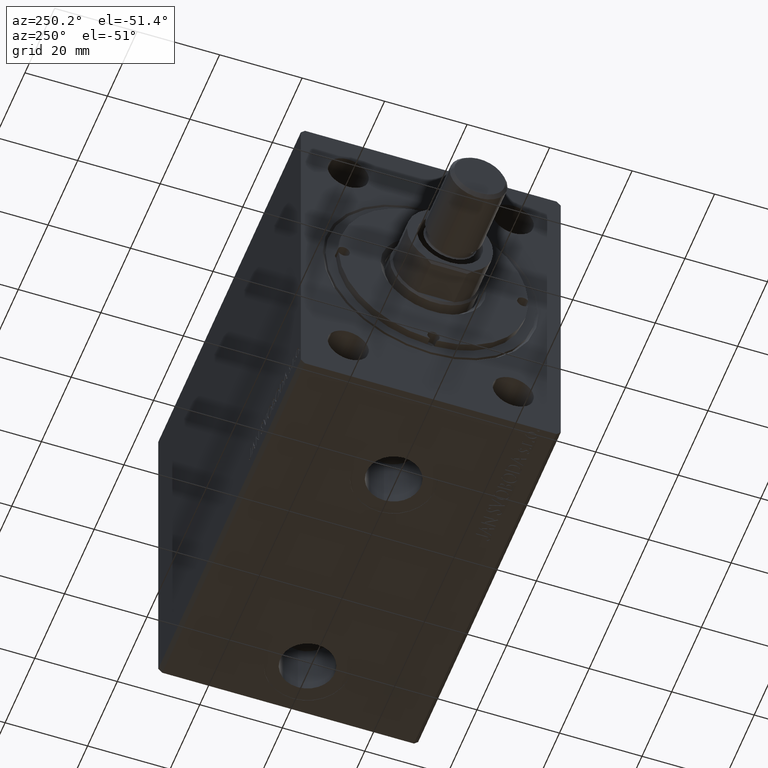
[diagram: clean part render]
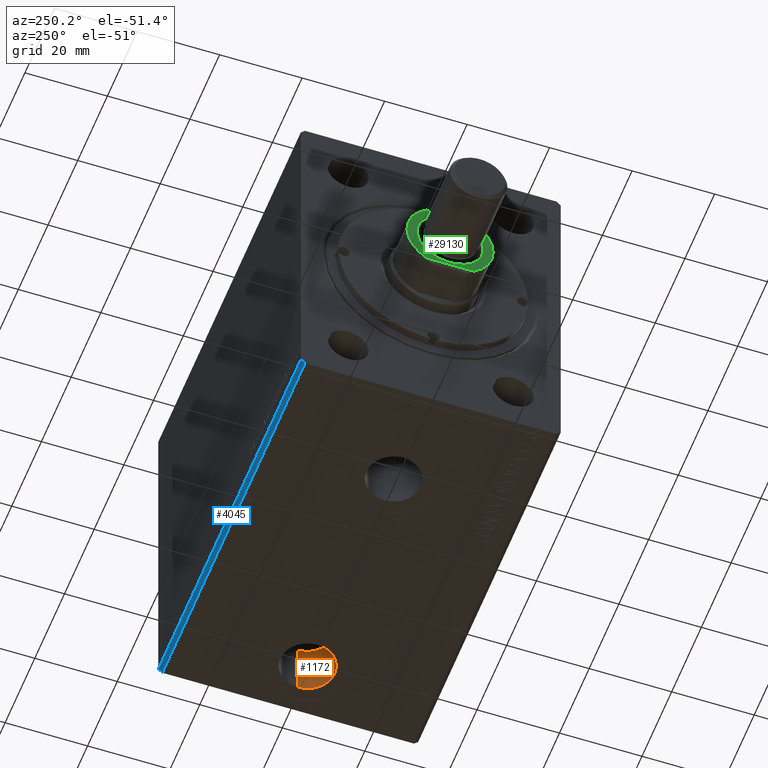
[diagram: same view with three faces highlighted in distinct colors, each labeled with its STEP entity id]
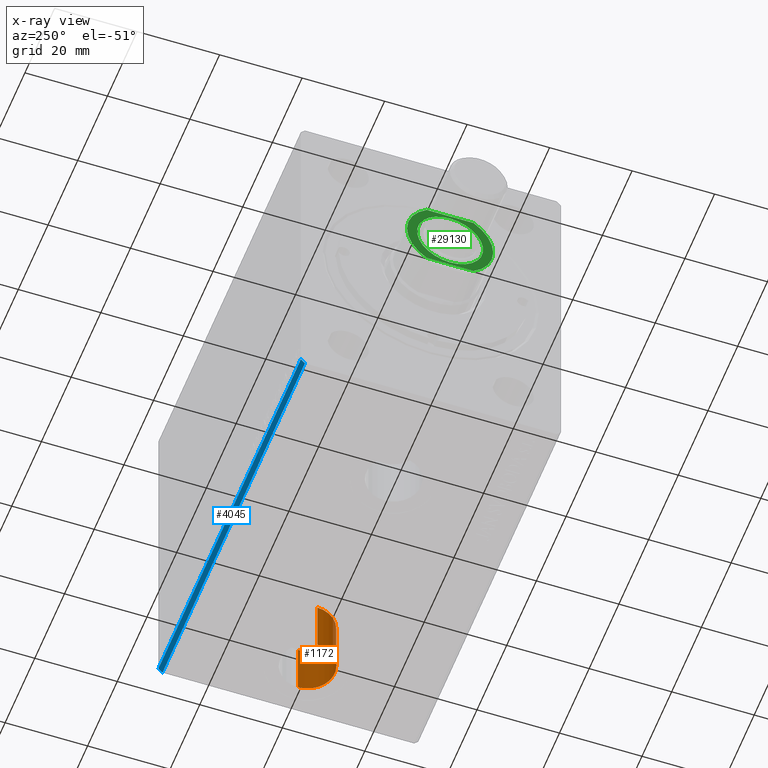
[diagram: x-ray of the same camera — body ghosted, the three highlighted faces saturated]
A machine part, auxiliary view with three faces highlighted in distinct colors.
The next image is the same camera in x-ray (body ghosted, the three faces saturated) — at least one of them is partly hidden behind the body in this view.
Their STEP definitions:

[orange] entity #1172 — the highlighted cylindrical surface (edge-blend (fillet) strip) has radius 6.58 mm, axis along (-0, -0, -1).
#374 = CARTESIAN_POINT ( 'NONE',  ( 89.58000000000001251, -9.105570349752486315E-15, -42.40000000000000568 ) ) ;
#1142 = DIRECTION ( 'NONE',  ( -1.000000000000000000, 0.000000000000000000, 0.000000000000000000 ) ) ;
#1172 = ADVANCED_FACE ( 'NONE', ( #44123 ), #27017, .F. ) ;
#1203 = EDGE_CURVE ( 'NONE', #4219, #4232, #20036, .T. ) ;
#1960 = VERTEX_POINT ( 'NONE', #20041 ) ;
#4219 = VERTEX_POINT ( 'NONE', #40259 ) ;
#4232 = VERTEX_POINT ( 'NONE', #17716 ) ;
#5132 = VERTEX_POINT ( 'NONE', #374 ) ;
#6795 = LINE ( 'NONE', #7014, #39703 ) ;
#7014 = CARTESIAN_POINT ( 'NONE',  ( 89.58000000000001251, -9.105570349752486315E-15, -28.80000000000000782 ) ) ;
#9520 = CIRCLE ( 'NONE', #34695, 6.580000000000002736 ) ;
#9839 = AXIS2_PLACEMENT_3D ( 'NONE', #28134, #41848, #38920 ) ;
#15676 = ORIENTED_EDGE ( 'NONE', *, *, #39952, .F. ) ;
#17716 = CARTESIAN_POINT ( 'NONE',  ( 76.42000000000000171, -9.911387943591445357E-15, -42.40000000000000568 ) ) ;
#17744 = CIRCLE ( 'NONE', #9839, 6.580000000000002736 ) ;
#18862 = AXIS2_PLACEMENT_3D ( 'NONE', #26136, #26801, #19141 ) ;
#19141 = DIRECTION ( 'NONE',  ( -1.000000000000000000, 0.000000000000000000, 0.000000000000000000 ) ) ;
#19711 = EDGE_LOOP ( 'NONE', ( #15676, #21535, #39571, #25025 ) ) ;
#20036 = LINE ( 'NONE', #23648, #20203 ) ;
#20041 = CARTESIAN_POINT ( 'NONE',  ( 89.58000000000001251, -9.105570349752486315E-15, -28.80000000000000782 ) ) ;
#20203 = VECTOR ( 'NONE', #29508, 1000.000000000000000 ) ;
#20535 = DIRECTION ( 'NONE',  ( -0.000000000000000000, -0.000000000000000000, -1.000000000000000000 ) ) ;
#21535 = ORIENTED_EDGE ( 'NONE', *, *, #23313, .T. ) ;
#23313 = EDGE_CURVE ( 'NONE', #1960, #5132, #6795, .T. ) ;
#23648 = CARTESIAN_POINT ( 'NONE',  ( 76.42000000000000171, -9.911387943591445357E-15, -28.80000000000000782 ) ) ;
#25025 = ORIENTED_EDGE ( 'NONE', *, *, #1203, .F. ) ;
#26136 = CARTESIAN_POINT ( 'NONE',  ( 83.00000000000000000, -9.911387943591445357E-15, -28.80000000000000782 ) ) ;
#26801 = DIRECTION ( 'NONE',  ( -0.000000000000000000, -0.000000000000000000, -1.000000000000000000 ) ) ;
#27017 = CYLINDRICAL_SURFACE ( 'NONE', #18862, 6.580000000000002736 ) ;
#27245 = EDGE_CURVE ( 'NONE', #5132, #4232, #9520, .T. ) ;
#28134 = CARTESIAN_POINT ( 'NONE',  ( 83.00000000000000000, -9.911387943591445357E-15, -28.80000000000000782 ) ) ;
#29508 = DIRECTION ( 'NONE',  ( -0.000000000000000000, -0.000000000000000000, -1.000000000000000000 ) ) ;
#34695 = AXIS2_PLACEMENT_3D ( 'NONE', #38757, #42127, #1142 ) ;
#38757 = CARTESIAN_POINT ( 'NONE',  ( 83.00000000000000000, -9.911387943591445357E-15, -42.40000000000000568 ) ) ;
#38920 = DIRECTION ( 'NONE',  ( -1.000000000000000000, 0.000000000000000000, 0.000000000000000000 ) ) ;
#39571 = ORIENTED_EDGE ( 'NONE', *, *, #27245, .T. ) ;
#39703 = VECTOR ( 'NONE', #20535, 1000.000000000000000 ) ;
#39952 = EDGE_CURVE ( 'NONE', #1960, #4219, #17744, .T. ) ;
#40259 = CARTESIAN_POINT ( 'NONE',  ( 76.42000000000000171, -9.911387943591445357E-15, -28.80000000000000782 ) ) ;
#41848 = DIRECTION ( 'NONE',  ( 0.000000000000000000, 0.000000000000000000, -1.000000000000000000 ) ) ;
#42127 = DIRECTION ( 'NONE',  ( 0.000000000000000000, 0.000000000000000000, -1.000000000000000000 ) ) ;
#44123 = FACE_OUTER_BOUND ( 'NONE', #19711, .T. ) ;

[blue] entity #4045 — the highlighted planar face has unit normal (0, -0.7071, 0.7071).
#1539 = CARTESIAN_POINT ( 'NONE',  ( 96.00000000000000000, 30.50000000000001776, -42.50000000000000711 ) ) ;
#4045 = ADVANCED_FACE ( 'NONE', ( #7855 ), #39591, .F. ) ;
#4284 = EDGE_CURVE ( 'NONE', #30232, #22589, #10514, .T. ) ;
#4873 = AXIS2_PLACEMENT_3D ( 'NONE', #1539, #35781, #4928 ) ;
#4928 = DIRECTION ( 'NONE',  ( 0.000000000000000000, -0.7071067811865462405, -0.7071067811865487940 ) ) ;
#5945 = CARTESIAN_POINT ( 'NONE',  ( 96.00000000000000000, 30.50000000000001776, -42.50000000000000711 ) ) ;
#7855 = FACE_OUTER_BOUND ( 'NONE', #25315, .T. ) ;
#8973 = LINE ( 'NONE', #36234, #21314 ) ;
#10358 = CARTESIAN_POINT ( 'NONE',  ( 0.000000000000000000, 31.50000000000001421, -41.50000000000000711 ) ) ;
#10514 = LINE ( 'NONE', #27202, #27898 ) ;
#12254 = ORIENTED_EDGE ( 'NONE', *, *, #4284, .F. ) ;
#14109 = DIRECTION ( 'NONE',  ( 0.000000000000000000, 0.7071067811865462405, 0.7071067811865489050 ) ) ;
#18892 = DIRECTION ( 'NONE',  ( -1.000000000000000000, -0.000000000000000000, -0.000000000000000000 ) ) ;
#19231 = DIRECTION ( 'NONE',  ( 0.000000000000000000, 0.7071067811865462405, 0.7071067811865489050 ) ) ;
#19707 = EDGE_CURVE ( 'NONE', #22589, #24724, #21069, .T. ) ;
#20403 = DIRECTION ( 'NONE',  ( -1.000000000000000000, -0.000000000000000000, -0.000000000000000000 ) ) ;
#21069 = LINE ( 'NONE', #34801, #44567 ) ;
#21314 = VECTOR ( 'NONE', #18892, 1000.000000000000000 ) ;
#22589 = VERTEX_POINT ( 'NONE', #35595 ) ;
#24702 = VECTOR ( 'NONE', #19231, 999.9999999999998863 ) ;
#24724 = VERTEX_POINT ( 'NONE', #10358 ) ;
#25315 = EDGE_LOOP ( 'NONE', ( #40742, #38849, #12254, #35696 ) ) ;
#27202 = CARTESIAN_POINT ( 'NONE',  ( 96.00000000000000000, 30.50000000000001776, -42.50000000000000711 ) ) ;
#27898 = VECTOR ( 'NONE', #14109, 999.9999999999998863 ) ;
#30185 = EDGE_CURVE ( 'NONE', #43125, #24724, #39940, .T. ) ;
#30232 = VERTEX_POINT ( 'NONE', #5945 ) ;
#34801 = CARTESIAN_POINT ( 'NONE',  ( 96.00000000000000000, 31.50000000000001421, -41.50000000000000711 ) ) ;
#35595 = CARTESIAN_POINT ( 'NONE',  ( 96.00000000000000000, 31.50000000000001421, -41.50000000000000711 ) ) ;
#35696 = ORIENTED_EDGE ( 'NONE', *, *, #41845, .T. ) ;
#35781 = DIRECTION ( 'NONE',  ( 0.000000000000000000, -0.7071067811865487940, 0.7071067811865462405 ) ) ;
#36234 = CARTESIAN_POINT ( 'NONE',  ( 96.00000000000000000, 30.50000000000001776, -42.50000000000000711 ) ) ;
#36804 = CARTESIAN_POINT ( 'NONE',  ( 0.000000000000000000, 30.50000000000001776, -42.50000000000000711 ) ) ;
#38849 = ORIENTED_EDGE ( 'NONE', *, *, #19707, .F. ) ;
#39591 = PLANE ( 'NONE',  #4873 ) ;
#39940 = LINE ( 'NONE', #36804, #24702 ) ;
#40742 = ORIENTED_EDGE ( 'NONE', *, *, #30185, .T. ) ;
#41845 = EDGE_CURVE ( 'NONE', #30232, #43125, #8973, .T. ) ;
#43125 = VERTEX_POINT ( 'NONE', #43987 ) ;
#43987 = CARTESIAN_POINT ( 'NONE',  ( 0.000000000000000000, 30.50000000000001776, -42.50000000000000711 ) ) ;
#44567 = VECTOR ( 'NONE', #20403, 1000.000000000000000 ) ;

[green] entity #29130 — the highlighted planar face has unit normal (1, -0, -0).
#700 = CARTESIAN_POINT ( 'NONE',  ( -8.790000000000011582, 10.45999999999998664, 73.00000000000001421 ) ) ;
#898 = ORIENTED_EDGE ( 'NONE', *, *, #22639, .F. ) ;
#937 = DIRECTION ( 'NONE',  ( 0.000000000000000000, -1.000000000000000000, 0.000000000000000000 ) ) ;
#1194 = CARTESIAN_POINT ( 'NONE',  ( 0.000000000000000000, -1.301937811151964518E-14, 73.00000000000001421 ) ) ;
#1784 = EDGE_LOOP ( 'NONE', ( #28181, #34279, #42397, #5787, #43355 ) ) ;
#2321 = CIRCLE ( 'NONE', #27509, 10.46000000000000085 ) ;
#2442 = AXIS2_PLACEMENT_3D ( 'NONE', #1194, #39697, #32514 ) ;
#3061 = CIRCLE ( 'NONE', #26798, 8.000000000000000000 ) ;
#4961 = DIRECTION ( 'NONE',  ( 1.000000000000000000, 0.000000000000000000, 0.000000000000000000 ) ) ;
#5275 = AXIS2_PLACEMENT_3D ( 'NONE', #30098, #33476, #16344 ) ;
#5787 = ORIENTED_EDGE ( 'NONE', *, *, #23771, .T. ) ;
#6189 = ORIENTED_EDGE ( 'NONE', *, *, #29981, .F. ) ;
#7053 = PLANE ( 'NONE',  #30428 ) ;
#8249 = DIRECTION ( 'NONE',  ( 0.000000000000000000, 1.000000000000000000, 1.783476453632827817E-16 ) ) ;
#9615 = CIRCLE ( 'NONE', #5275, 8.000000000000000000 ) ;
#9623 = EDGE_LOOP ( 'NONE', ( #6189, #898 ) ) ;
#9724 = CARTESIAN_POINT ( 'NONE',  ( 0.000000000000000000, -10.46000000000001506, 73.00000000000001421 ) ) ;
#10164 = CARTESIAN_POINT ( 'NONE',  ( 8.000000000000000000, -1.301937811151964518E-14, 73.00000000000001421 ) ) ;
#10930 = VERTEX_POINT ( 'NONE', #41134 ) ;
#13862 = VECTOR ( 'NONE', #8249, 1000.000000000000000 ) ;
#15263 = VECTOR ( 'NONE', #25043, 1000.000000000000000 ) ;
#15887 = CARTESIAN_POINT ( 'NONE',  ( -8.790000000000011582, -5.669876541865789932, 73.00000000000001421 ) ) ;
#16344 = DIRECTION ( 'NONE',  ( 1.000000000000000000, 0.000000000000000000, 0.000000000000000000 ) ) ;
#16667 = CARTESIAN_POINT ( 'NONE',  ( 0.000000000000000000, -1.301937811151964518E-14, 73.00000000000001421 ) ) ;
#17639 = VERTEX_POINT ( 'NONE', #10164 ) ;
#18255 = DIRECTION ( 'NONE',  ( 0.000000000000000000, 0.000000000000000000, 1.000000000000000000 ) ) ;
#18990 = CARTESIAN_POINT ( 'NONE',  ( -8.000000000000000000, -1.203966067220176400E-14, 73.00000000000001421 ) ) ;
#21439 = LINE ( 'NONE', #700, #15263 ) ;
#21870 = CIRCLE ( 'NONE', #2442, 10.46000000000000085 ) ;
#22374 = VERTEX_POINT ( 'NONE', #9724 ) ;
#22639 = EDGE_CURVE ( 'NONE', #27015, #17639, #3061, .T. ) ;
#23771 = EDGE_CURVE ( 'NONE', #10930, #26187, #2321, .T. ) ;
#24031 = VERTEX_POINT ( 'NONE', #15887 ) ;
#25043 = DIRECTION ( 'NONE',  ( 0.000000000000000000, -1.000000000000000000, -1.783476453632827817E-16 ) ) ;
#25392 = CARTESIAN_POINT ( 'NONE',  ( 8.790000000000011582, 10.45999999999998664, 73.00000000000001421 ) ) ;
#26187 = VERTEX_POINT ( 'NONE', #41162 ) ;
#26798 = AXIS2_PLACEMENT_3D ( 'NONE', #28848, #18255, #4961 ) ;
#27015 = VERTEX_POINT ( 'NONE', #18990 ) ;
#27287 = EDGE_CURVE ( 'NONE', #26187, #24031, #21439, .T. ) ;
#27335 = FACE_OUTER_BOUND ( 'NONE', #1784, .T. ) ;
#27509 = AXIS2_PLACEMENT_3D ( 'NONE', #16667, #37382, #30199 ) ;
#27684 = EDGE_CURVE ( 'NONE', #41276, #10930, #42695, .T. ) ;
#28181 = ORIENTED_EDGE ( 'NONE', *, *, #30356, .T. ) ;
#28848 = CARTESIAN_POINT ( 'NONE',  ( 0.000000000000000000, -1.301937811151964518E-14, 73.00000000000001421 ) ) ;
#29130 = ADVANCED_FACE ( 'NONE', ( #41053, #27335 ), #7053, .F. ) ;
#29981 = EDGE_CURVE ( 'NONE', #17639, #27015, #9615, .T. ) ;
#30098 = CARTESIAN_POINT ( 'NONE',  ( 0.000000000000000000, -1.301937811151964518E-14, 73.00000000000001421 ) ) ;
#30199 = DIRECTION ( 'NONE',  ( 0.000000000000000000, -1.000000000000000000, 0.000000000000000000 ) ) ;
#30356 = EDGE_CURVE ( 'NONE', #24031, #22374, #36944, .T. ) ;
#30428 = AXIS2_PLACEMENT_3D ( 'NONE', #38129, #31164, #34749 ) ;
#31164 = DIRECTION ( 'NONE',  ( 0.000000000000000000, 1.783476453632827817E-16, -1.000000000000000000 ) ) ;
#32171 = EDGE_CURVE ( 'NONE', #22374, #41276, #21870, .T. ) ;
#32514 = DIRECTION ( 'NONE',  ( 0.000000000000000000, -1.000000000000000000, 0.000000000000000000 ) ) ;
#33476 = DIRECTION ( 'NONE',  ( 0.000000000000000000, 0.000000000000000000, 1.000000000000000000 ) ) ;
#34061 = AXIS2_PLACEMENT_3D ( 'NONE', #35186, #41923, #937 ) ;
#34279 = ORIENTED_EDGE ( 'NONE', *, *, #32171, .T. ) ;
#34749 = DIRECTION ( 'NONE',  ( 0.000000000000000000, 1.000000000000000000, 1.783476453632827817E-16 ) ) ;
#35186 = CARTESIAN_POINT ( 'NONE',  ( 0.000000000000000000, -1.301937811151964518E-14, 73.00000000000001421 ) ) ;
#36944 = CIRCLE ( 'NONE', #34061, 10.46000000000000085 ) ;
#37382 = DIRECTION ( 'NONE',  ( -0.000000000000000000, -1.783476453632827817E-16, 1.000000000000000000 ) ) ;
#38129 = CARTESIAN_POINT ( 'NONE',  ( 0.000000000000000000, 10.45999999999998664, 73.00000000000001421 ) ) ;
#39697 = DIRECTION ( 'NONE',  ( -0.000000000000000000, -1.783476453632827817E-16, 1.000000000000000000 ) ) ;
#40152 = CARTESIAN_POINT ( 'NONE',  ( 8.790000000000011582, -5.669876541865789932, 73.00000000000001421 ) ) ;
#41053 = FACE_BOUND ( 'NONE', #9623, .T. ) ;
#41134 = CARTESIAN_POINT ( 'NONE',  ( 8.790000000000011582, 5.669876541865764175, 73.00000000000001421 ) ) ;
#41162 = CARTESIAN_POINT ( 'NONE',  ( -8.790000000000011582, 5.669876541865764175, 73.00000000000001421 ) ) ;
#41276 = VERTEX_POINT ( 'NONE', #40152 ) ;
#41923 = DIRECTION ( 'NONE',  ( -0.000000000000000000, -1.783476453632827817E-16, 1.000000000000000000 ) ) ;
#42397 = ORIENTED_EDGE ( 'NONE', *, *, #27684, .T. ) ;
#42695 = LINE ( 'NONE', #25392, #13862 ) ;
#43355 = ORIENTED_EDGE ( 'NONE', *, *, #27287, .T. ) ;